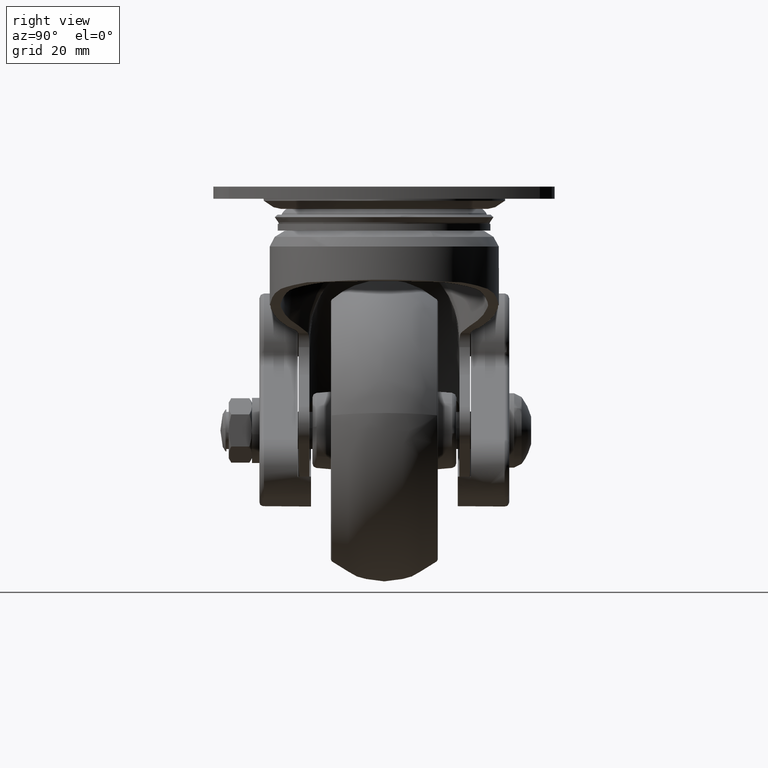
[diagram: clean part render]
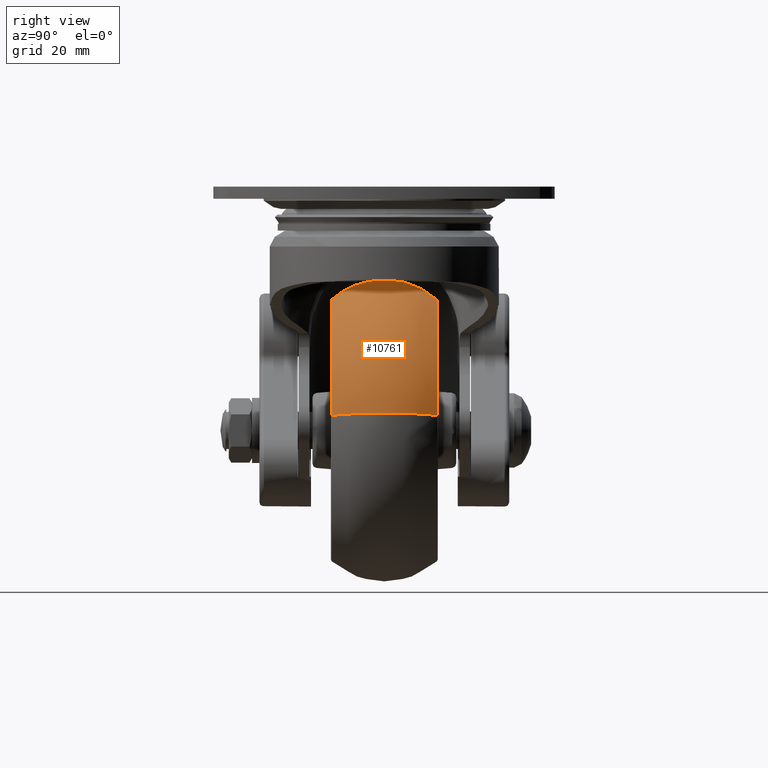
[diagram: same view with one face highlighted and labeled with its STEP entity id]
A machine part, right view. The second image highlights one B-rep face of the part: STEP entity #10761.
In plain terms, the highlighted face is a freeform B-spline surface patch.
Its self-contained STEP definition (entity closure, byte-faithful):
#10189=CARTESIAN_POINT('',(0.0,11.333334435423961,-24.328949551365589));
#10190=VERTEX_POINT('',#10189);
#10204=CARTESIAN_POINT('',(27.982633072573631,11.333333551670661,-49.247251279147989));
#10205=VERTEX_POINT('',#10204);
#10206=CARTESIAN_POINT('',(0.0,11.333334435423961,-24.328949551365589));
#10207=CARTESIAN_POINT('',(25.086087235756498,11.333333993547310,-24.328949263905081));
#10208=CARTESIAN_POINT('',(27.982633072573631,11.333333551670659,-49.247251279147989));
#10216=(BOUNDED_CURVE()B_SPLINE_CURVE(2,(#10206,#10207,#10208),.UNSPECIFIED.,.F.,.U.)B_SPLINE_CURVE_WITH_KNOTS((3,3),(0.0,0.229999999997615),.UNSPECIFIED.)CURVE()GEOMETRIC_REPRESENTATION_ITEM()RATIONAL_B_SPLINE_CURVE((1.0,0.730538238694418,0.956886118185966))REPRESENTATION_ITEM(''));
#10217=EDGE_CURVE('',#10190,#10205,#10216,.T.);
#10284=CARTESIAN_POINT('',(0.0,-11.333334251226290,-24.328948948489820));
#10285=VERTEX_POINT('',#10284);
#10348=CARTESIAN_POINT('',(20.776519899190902,-11.333333490979200,-33.475164785183892));
#10349=VERTEX_POINT('',#10348);
#10363=CARTESIAN_POINT('',(0.0,-11.333334251226290,-24.328948948489820));
#10364=CARTESIAN_POINT('',(12.401428492131451,-11.333334030029485,-24.328948750703489));
#10365=CARTESIAN_POINT('',(20.776519899190898,-11.333333490979197,-33.475164785183892));
#10373=(BOUNDED_CURVE()B_SPLINE_CURVE(2,(#10363,#10364,#10365),.UNSPECIFIED.,.F.,.U.)B_SPLINE_CURVE_WITH_KNOTS((3,3),(0.0,0.131637484823136),.UNSPECIFIED.)CURVE()GEOMETRIC_REPRESENTATION_ITEM()RATIONAL_B_SPLINE_CURVE((1.0,0.845777093414579,0.853966311029304))REPRESENTATION_ITEM(''));
#10374=EDGE_CURVE('',#10285,#10349,#10373,.T.);
#10417=CARTESIAN_POINT('',(27.982633681312191,-11.333333356335430,-49.247251208386047));
#10418=VERTEX_POINT('',#10417);
#10434=CARTESIAN_POINT('',(20.776519899190898,-11.333333490979197,-33.475164785183892));
#10435=CARTESIAN_POINT('',(26.930469466324464,-11.333333518869052,-40.195729799288053));
#10436=CARTESIAN_POINT('',(27.982633681312191,-11.333333356335430,-49.247251208386054));
#10444=(BOUNDED_CURVE()B_SPLINE_CURVE(2,(#10434,#10435,#10436),.UNSPECIFIED.,.F.,.U.)B_SPLINE_CURVE_WITH_KNOTS((3,3),(0.131637484823136,0.229999999997602),.UNSPECIFIED.)CURVE()GEOMETRIC_REPRESENTATION_ITEM()RATIONAL_B_SPLINE_CURVE((0.853966311029304,0.860085480223228,0.956886118185939))REPRESENTATION_ITEM(''));
#10445=EDGE_CURVE('',#10349,#10418,#10444,.T.);
#10692=CARTESIAN_POINT('',(27.982633072573634,11.333333551670663,-49.247251279147996));
#10693=CARTESIAN_POINT('',(32.282628260515175,6.493422526398911,-48.747412546870109));
#10694=CARTESIAN_POINT('',(32.282628260515168,0.0,-48.747412546870102));
#10695=CARTESIAN_POINT('',(32.282628260515160,-6.493422208897485,-48.747412546870116));
#10696=CARTESIAN_POINT('',(27.982633681312191,-11.333333356335435,-49.247251208386054));
#10704=(BOUNDED_CURVE()B_SPLINE_CURVE(2,(#10692,#10693,#10694,#10695,#10696),.UNSPECIFIED.,.F.,.U.)B_SPLINE_CURVE_WITH_KNOTS((3,2,3),(0.366133632063868,0.500000000000000,0.633866362169301),.UNSPECIFIED.)CURVE()GEOMETRIC_REPRESENTATION_ITEM()RATIONAL_B_SPLINE_CURVE((0.851125676724400,0.843051263047130,0.956886118190660,0.843051267951023,0.851125676028725))REPRESENTATION_ITEM(''));
#10705=EDGE_CURVE('',#10205,#10418,#10704,.T.);
#10710=CARTESIAN_POINT('',(0.0,11.333334435423961,-24.328949551365596));
#10711=CARTESIAN_POINT('',(0.0,6.493423205768518,-20.0));
#10712=CARTESIAN_POINT('',(0.0,0.0,-20.0));
#10713=CARTESIAN_POINT('',(0.0,-6.493422896828641,-20.0));
#10714=CARTESIAN_POINT('',(0.0,-11.333334251226287,-24.328948948489824));
#10722=(BOUNDED_CURVE()B_SPLINE_CURVE(2,(#10710,#10711,#10712,#10713,#10714),.UNSPECIFIED.,.F.,.U.)B_SPLINE_CURVE_WITH_KNOTS((3,2,3),(0.366133619724366,0.500000000000000,0.633866374664308),.UNSPECIFIED.)CURVE()GEOMETRIC_REPRESENTATION_ITEM()RATIONAL_B_SPLINE_CURVE((0.889474371121953,0.881036140589208,1.0,0.881036145575859,0.889474370414536))REPRESENTATION_ITEM(''));
#10723=EDGE_CURVE('',#10190,#10285,#10722,.T.);
#10731=CARTESIAN_POINT('',(0.0,12.256631343109323,-25.219720371777655));
#10732=CARTESIAN_POINT('',(0.0,7.239774440152939,-19.999999999999993));
#10733=CARTESIAN_POINT('',(0.0,0.0,-20.0));
#10734=CARTESIAN_POINT('',(0.0,-7.239774440152933,-19.999999999999993));
#10735=CARTESIAN_POINT('',(0.0,-12.256631343109312,-25.219720371777640));
#10736=CARTESIAN_POINT('',(24.292862605170328,12.256631343109317,-25.219720371777662));
#10737=CARTESIAN_POINT('',(28.940980276875663,7.239774440152939,-20.0));
#10738=CARTESIAN_POINT('',(28.940980276875663,0.0,-20.000000000000007));
#10739=CARTESIAN_POINT('',(28.940980276875681,-7.239774440152935,-20.0));
#10740=CARTESIAN_POINT('',(24.292862605170345,-12.256631343109316,-25.219720371777651));
#10741=CARTESIAN_POINT('',(27.097819264024814,12.256631343109319,-49.350103536900235));
#10742=CARTESIAN_POINT('',(32.282628260515168,7.239774440152939,-48.747412546870095));
#10743=CARTESIAN_POINT('',(32.282628260515168,0.0,-48.747412546870102));
#10744=CARTESIAN_POINT('',(32.282628260515168,-7.239774440152933,-48.747412546870109));
#10745=CARTESIAN_POINT('',(27.097819264024828,-12.256631343109309,-49.350103536900235));
#10753=(BOUNDED_SURFACE()B_SPLINE_SURFACE(2,2,((#10731,#10736,#10741),(#10732,#10737,#10742),(#10733,#10738,#10743),(#10734,#10739,#10744),(#10735,#10740,#10745)),.UNSPECIFIED.,.F.,.F.,.U.)B_SPLINE_SURFACE_WITH_KNOTS((3,2,3),(3,3),(0.0,14.101832727451070,28.203665454902140),(0.0,49.485603581165591),.UNSPECIFIED.)GEOMETRIC_REPRESENTATION_ITEM()RATIONAL_B_SPLINE_SURFACE(((0.892431800044166,0.651955555356661,0.853955600894165),(0.869151661347548,0.634948523836737,0.831679159345819),(1.0,0.730538238691624,0.956886118190660),(0.869151661347548,0.634948523836737,0.831679159345819),(0.892431800044166,0.651955555356660,0.853955600894165)))REPRESENTATION_ITEM('')SURFACE());
#10754=ORIENTED_EDGE('',*,*,#10217,.F.);
#10755=ORIENTED_EDGE('',*,*,#10723,.T.);
#10756=ORIENTED_EDGE('',*,*,#10374,.T.);
#10757=ORIENTED_EDGE('',*,*,#10445,.T.);
#10758=ORIENTED_EDGE('',*,*,#10705,.F.);
#10759=EDGE_LOOP('',(#10754,#10755,#10756,#10757,#10758));
#10760=FACE_OUTER_BOUND('',#10759,.T.);
#10761=ADVANCED_FACE('',(#10760),#10753,.T.);